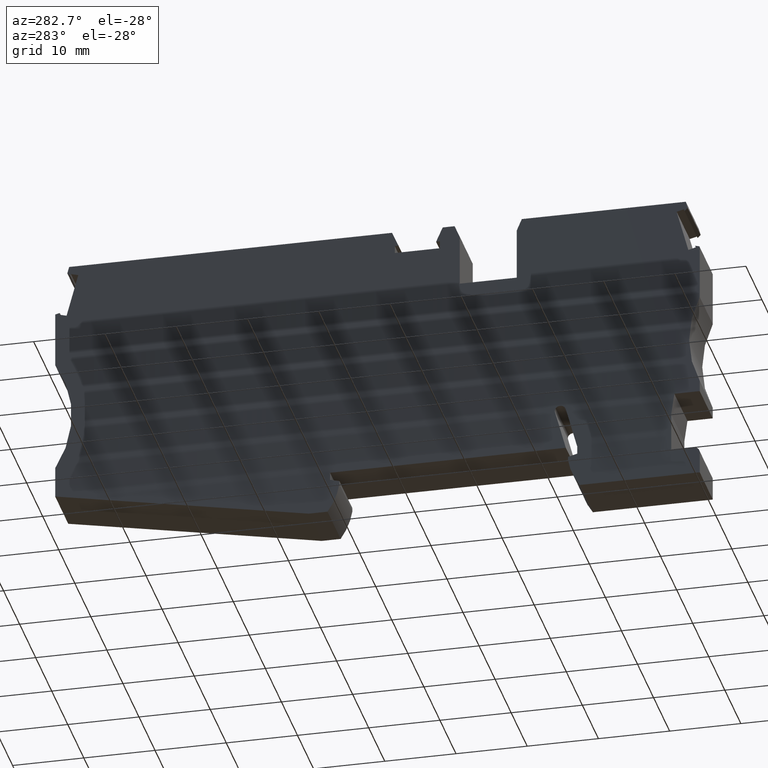
[diagram: clean part render]
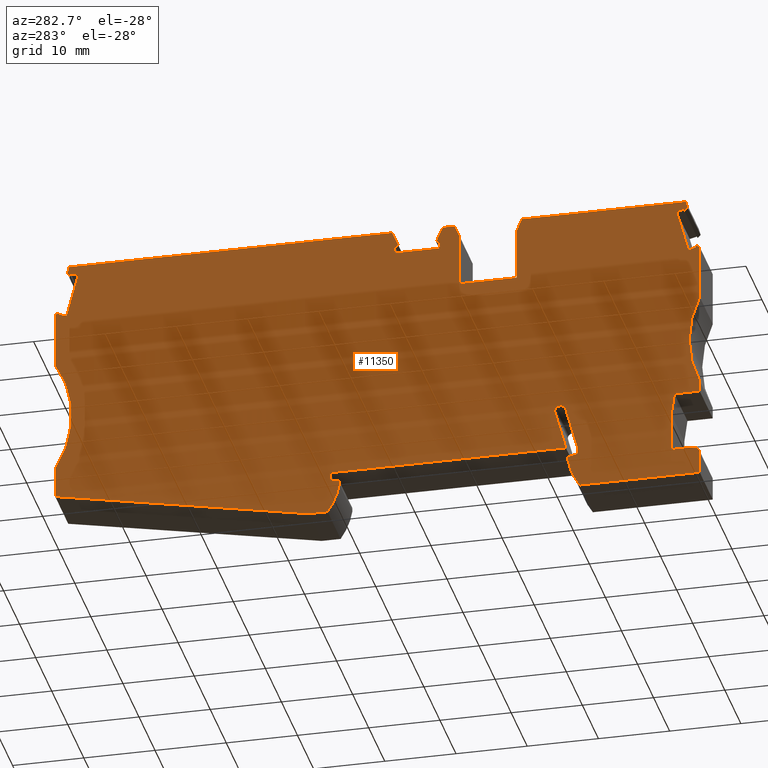
[diagram: same view with one face highlighted and labeled with its STEP entity id]
A machine part, auxiliary view. The second image highlights one B-rep face of the part: STEP entity #11350.
In plain terms, the highlighted planar face has unit normal (1, 0, 0).
Its self-contained STEP definition (entity closure, byte-faithful):
#6450=CARTESIAN_POINT('',(21.038441,-10.370222,45.52));
#6460=DIRECTION('',(0.,0.,1.));
#6470=DIRECTION('',(1.,0.,0.));
#6480=AXIS2_PLACEMENT_3D('',#6450,#6460,#6470);
#6490=PLANE('',#6480);
#6500=CARTESIAN_POINT('',(-46.2773644320327,-44.4000000000004,45.52));
#6510=DIRECTION('',(1.,-1.85407245112401E-14,0.));
#6520=VECTOR('',#6510,1.);
#6530=LINE('',#6500,#6520);
#6540=CARTESIAN_POINT('',(19.4911108748078,-44.4000000000016,45.52));
#6550=VERTEX_POINT('',#6540);
#6560=CARTESIAN_POINT('',(22.1321672216373,-44.4000000000017,45.52));
#6570=VERTEX_POINT('',#6560);
#6580=EDGE_CURVE('',#6550,#6570,#6530,.T.);
#6590=ORIENTED_EDGE('',*,*,#6580,.F.);
#6600=CARTESIAN_POINT('',(-47.9245331717135,-57.8151128412913,45.52));
#6610=DIRECTION('',(0.98215519189214,0.188072270787892,0.));
#6620=VECTOR('',#6610,1.);
#6630=LINE('',#6600,#6620);
#6640=CARTESIAN_POINT('',(57.7321672216756,-37.5829787234045,45.52));
#6650=VERTEX_POINT('',#6640);
#6660=EDGE_CURVE('',#6570,#6650,#6630,.T.);
#6670=ORIENTED_EDGE('',*,*,#6660,.F.);
#6680=CARTESIAN_POINT('',(57.7321672216756,-43.855159722427,45.52));
#6690=DIRECTION('',(0.,1.,0.));
#6700=VECTOR('',#6690,1.);
#6710=LINE('',#6680,#6700);
#6720=CARTESIAN_POINT('',(57.7321672216756,-33.2000000000001,45.52));
#6730=VERTEX_POINT('',#6720);
#6740=EDGE_CURVE('',#6650,#6730,#6710,.T.);
#6750=ORIENTED_EDGE('',*,*,#6740,.F.);
#6760=CARTESIAN_POINT('',(70.4207447621228,-25.2000000000012,45.52));
#6770=DIRECTION('',(0.,0.,1.));
#6780=DIRECTION('',(1.,0.,0.));
#6790=AXIS2_PLACEMENT_3D('',#6760,#6770,#6780);
#6800=CIRCLE('',#6790,14.9999999999975);
#6810=CARTESIAN_POINT('',(57.7321672216756,-17.2000000000023,45.52));
#6820=VERTEX_POINT('',#6810);
#6830=EDGE_CURVE('',#6820,#6730,#6800,.T.);
#6840=ORIENTED_EDGE('',*,*,#6830,.T.);
#6850=CARTESIAN_POINT('',(57.7321672216755,-43.855159722427,45.52));
#6860=DIRECTION('',(5.55111512312578E-17,1.,0.));
#6870=VECTOR('',#6860,1.);
#6880=LINE('',#6850,#6870);
#6890=CARTESIAN_POINT('',(57.7321672216757,-9.35007932792135,45.52));
#6900=VERTEX_POINT('',#6890);
#6910=EDGE_CURVE('',#6820,#6900,#6880,.T.);
#6920=ORIENTED_EDGE('',*,*,#6910,.F.);
#6930=CARTESIAN_POINT('',(-38.7979327141959,16.5150829944433,45.52));
#6940=DIRECTION('',(-0.965925826290939,0.25881904509554,0.));
#6950=VECTOR('',#6940,1.);
#6960=LINE('',#6930,#6950);
#6970=CARTESIAN_POINT('',(57.0932633654052,-9.17888555559751,45.52));
#6980=VERTEX_POINT('',#6970);
#6990=EDGE_CURVE('',#6900,#6980,#6960,.T.);
#7000=ORIENTED_EDGE('',*,*,#6990,.F.);
#7010=CARTESIAN_POINT('',(66.67909723662,-44.953704595741,45.52));
#7020=DIRECTION('',(0.258819045103503,-0.965925826288805,0.));
#7030=VECTOR('',#7020,1.);
#7040=LINE('',#7010,#7030);
#7050=CARTESIAN_POINT('',(57.1637417638807,-9.44191451954375,45.52));
#7060=VERTEX_POINT('',#7050);
#7070=EDGE_CURVE('',#6980,#7060,#7040,.T.);
#7080=ORIENTED_EDGE('',*,*,#7070,.F.);
#7090=CARTESIAN_POINT('',(-45.3580196612604,-36.912537700084,45.52));
#7100=DIRECTION('',(-0.965925826288933,-0.258819045103026,0.));
#7110=VECTOR('',#7100,1.);
#7120=LINE('',#7090,#7110);
#7130=CARTESIAN_POINT('',(56.1302011297505,-9.71885089780426,45.52));
#7140=VERTEX_POINT('',#7130);
#7150=EDGE_CURVE('',#7060,#7140,#7120,.T.);
#7160=ORIENTED_EDGE('',*,*,#7150,.F.);
#7170=CARTESIAN_POINT('',(65.5336670427523,-44.813063452342,45.52));
#7180=DIRECTION('',(-0.258819045102705,0.965925826289019,0.));
#7190=VECTOR('',#7180,1.);
#7200=LINE('',#7170,#7190);
#7210=CARTESIAN_POINT('',(54.4931706694759,-3.60937004652565,45.52));
#7220=VERTEX_POINT('',#7210);
#7230=EDGE_CURVE('',#7140,#7220,#7200,.T.);
#7240=ORIENTED_EDGE('',*,*,#7230,.F.);
#7250=CARTESIAN_POINT('',(-44.5266596313707,-30.1416536102915,45.52));
#7260=DIRECTION('',(0.9659258262891,0.258819045102404,0.));
#7270=VECTOR('',#7260,1.);
#7280=LINE('',#7250,#7270);
#7290=CARTESIAN_POINT('',(55.5267113036061,-3.33243366826583,45.52));
#7300=VERTEX_POINT('',#7290);
#7310=EDGE_CURVE('',#7220,#7300,#7280,.T.);
#7320=ORIENTED_EDGE('',*,*,#7310,.F.);
#7330=CARTESIAN_POINT('',(66.6790972365502,-44.9537045957324,45.52));
#7340=DIRECTION('',(0.258819045101928,-0.965925826289227,0.));
#7350=VECTOR('',#7340,1.);
#7360=LINE('',#7330,#7350);
#7370=CARTESIAN_POINT('',(55.5971897020822,-3.5954626322157,45.52));
#7380=VERTEX_POINT('',#7370);
#7390=EDGE_CURVE('',#7300,#7380,#7360,.T.);
#7400=ORIENTED_EDGE('',*,*,#7390,.F.);
#7410=CARTESIAN_POINT('',(19.9736549601527,-39.218997374049,45.52));
#7420=DIRECTION('',(0.707106781187503,0.707106781185593,0.));
#7430=VECTOR('',#7420,1.);
#7440=LINE('',#7410,#7430);
#7450=CARTESIAN_POINT('',(56.0299328899744,-3.16271944432467,45.52));
#7460=VERTEX_POINT('',#7450);
#7470=EDGE_CURVE('',#7380,#7460,#7440,.T.);
#7480=ORIENTED_EDGE('',*,*,#7470,.F.);
#7490=CARTESIAN_POINT('',(67.2464598559739,-45.0233679658311,45.52));
#7500=DIRECTION('',(-0.258819045102926,0.96592582628896,0.));
#7510=VECTOR('',#7500,1.);
#7520=LINE('',#7490,#7510);
#7530=CARTESIAN_POINT('',(55.7719729923255,-2.19999999998543,45.52));
#7540=VERTEX_POINT('',#7530);
#7550=EDGE_CURVE('',#7460,#7540,#7520,.T.);
#7560=ORIENTED_EDGE('',*,*,#7550,.F.);
#7570=CARTESIAN_POINT('',(-41.0958559619296,-2.19999999999667,45.52));
#7580=DIRECTION('',(-1.,-1.1550482792444E-13,0.));
#7590=VECTOR('',#7580,1.);
#7600=LINE('',#7570,#7590);
#7610=CARTESIAN_POINT('',(10.4418215966527,-2.19999999999068,45.52));
#7620=VERTEX_POINT('',#7610);
#7630=EDGE_CURVE('',#7540,#7620,#7600,.T.);
#7640=ORIENTED_EDGE('',*,*,#7630,.F.);
#7650=CARTESIAN_POINT('',(-5.11084090843868,-37.5907940006739,45.52));
#7660=DIRECTION('',(-0.402320578212711,-0.915498854366618,0.));
#7670=VECTOR('',#7660,1.);
#7680=LINE('',#7650,#7670);
#7690=CARTESIAN_POINT('',(9.51676875458966,-4.30499999998961,45.52));
#7700=VERTEX_POINT('',#7690);
#7710=EDGE_CURVE('',#7620,#7700,#7680,.T.);
#7720=ORIENTED_EDGE('',*,*,#7710,.F.);
#7730=CARTESIAN_POINT('',(-19.5576683774103,-4.30499999998969,45.52));
#7740=DIRECTION('',(1.,5.55111512312578E-17,0.));
#7750=VECTOR('',#7740,1.);
#7760=LINE('',#7730,#7750);
#7770=CARTESIAN_POINT('',(10.0446672216767,-4.3049999999896,45.52));
#7780=VERTEX_POINT('',#7770);
#7790=EDGE_CURVE('',#7700,#7780,#7760,.T.);
#7800=ORIENTED_EDGE('',*,*,#7790,.F.);
#7810=CARTESIAN_POINT('',(10.0446672216767,-37.5907940006739,45.52));
#7820=DIRECTION('',(5.55111512312578E-17,-1.,0.));
#7830=VECTOR('',#7820,1.);
#7840=LINE('',#7810,#7830);
#7850=CARTESIAN_POINT('',(10.0446672216767,-5.37499999998962,45.52));
#7860=VERTEX_POINT('',#7850);
#7870=EDGE_CURVE('',#7780,#7860,#7840,.T.);
#7880=ORIENTED_EDGE('',*,*,#7870,.F.);
#7890=CARTESIAN_POINT('',(-19.5576683774103,-5.37499999998796,45.52));
#7900=DIRECTION('',(-1.,5.79258863098175E-14,0.));
#7910=VECTOR('',#7900,1.);
#7920=LINE('',#7890,#7910);
#7930=CARTESIAN_POINT('',(3.7196672216766,-5.37499999998928,45.52));
#7940=VERTEX_POINT('',#7930);
#7950=EDGE_CURVE('',#7860,#7940,#7920,.T.);
#7960=ORIENTED_EDGE('',*,*,#7950,.F.);
#7970=CARTESIAN_POINT('',(3.71966722167662,-37.5907940006739,45.52));
#7980=DIRECTION('',(-5.55111512312578E-17,1.,0.));
#7990=VECTOR('',#7980,1.);
#8000=LINE('',#7970,#7990);
#8010=CARTESIAN_POINT('',(3.71966722167661,-4.30499999998962,45.52));
#8020=VERTEX_POINT('',#8010);
#8030=EDGE_CURVE('',#7940,#8020,#8000,.T.);
#8040=ORIENTED_EDGE('',*,*,#8030,.F.);
#8050=CARTESIAN_POINT('',(-19.5576683774103,-4.30499999998969,45.52));
#8060=DIRECTION('',(1.,5.55111512312578E-17,0.));
#8070=VECTOR('',#8060,1.);
#8080=LINE('',#8050,#8070);
#8090=CARTESIAN_POINT('',(4.24756568876222,-4.30499999998969,45.52));
#8100=VERTEX_POINT('',#8090);
#8110=EDGE_CURVE('',#8020,#8100,#8080,.T.);
#8120=ORIENTED_EDGE('',*,*,#8110,.F.);
#8130=CARTESIAN_POINT('',(18.8751753517561,-37.5907940006739,45.52));
#8140=DIRECTION('',(-0.402320578211921,0.915498854366965,0.));
#8150=VECTOR('',#8140,1.);
#8160=LINE('',#8130,#8150);
#8170=CARTESIAN_POINT('',(3.32251284670154,-2.19999999999153,45.52));
#8180=VERTEX_POINT('',#8170);
#8190=EDGE_CURVE('',#8100,#8180,#8160,.T.);
#8200=ORIENTED_EDGE('',*,*,#8190,.F.);
#8210=CARTESIAN_POINT('',(-19.5576683774103,-2.19999999999418,45.52));
#8220=DIRECTION('',(-1.,-1.1550482792444E-13,0.));
#8230=VECTOR('',#8220,1.);
#8240=LINE('',#8210,#8230);
#8250=CARTESIAN_POINT('',(1.65066694098097,-2.19999999999167,45.52));
#8260=VERTEX_POINT('',#8250);
#8270=EDGE_CURVE('',#8180,#8260,#8240,.T.);
#8280=ORIENTED_EDGE('',*,*,#8270,.F.);
#8290=CARTESIAN_POINT('',(-13.3071422093151,-37.5907940006739,45.52));
#8300=DIRECTION('',(0.389303997098168,0.92110933001647,0.));
#8310=VECTOR('',#8300,1.);
#8320=LINE('',#8290,#8310);
#8330=CARTESIAN_POINT('',(0.932167221675236,-3.89999999999126,45.52));
#8340=VERTEX_POINT('',#8330);
#8350=EDGE_CURVE('',#8340,#8260,#8320,.T.);
#8360=ORIENTED_EDGE('',*,*,#8350,.T.);
#8370=CARTESIAN_POINT('',(0.932167221675215,-37.5907940006739,45.52));
#8380=DIRECTION('',(0.,1.,0.));
#8390=VECTOR('',#8380,1.);
#8400=LINE('',#8370,#8390);
#8410=CARTESIAN_POINT('',(0.932167221675208,-11.1999999999897,45.52));
#8420=VERTEX_POINT('',#8410);
#8430=EDGE_CURVE('',#8420,#8340,#8400,.T.);
#8440=ORIENTED_EDGE('',*,*,#8430,.T.);
#8450=CARTESIAN_POINT('',(-19.5576683774103,-11.1999999999897,45.52));
#8460=DIRECTION('',(1.,4.44089209850063E-16,0.));
#8470=VECTOR('',#8460,1.);
#8480=LINE('',#8450,#8470);
#8490=CARTESIAN_POINT('',(-7.06783277832459,-11.1999999999897,45.52));
#8500=VERTEX_POINT('',#8490);
#8510=EDGE_CURVE('',#8500,#8420,#8480,.T.);
#8520=ORIENTED_EDGE('',*,*,#8510,.T.);
#8530=CARTESIAN_POINT('',(-7.0678327783246,-37.5907940006739,45.52));
#8540=DIRECTION('',(0.,-1.,0.));
#8550=VECTOR('',#8540,1.);
#8560=LINE('',#8530,#8550);
#8570=CARTESIAN_POINT('',(-7.06783277832459,-3.89999999999147,45.52));
#8580=VERTEX_POINT('',#8570);
#8590=EDGE_CURVE('',#8580,#8500,#8560,.T.);
#8600=ORIENTED_EDGE('',*,*,#8590,.T.);
#8610=CARTESIAN_POINT('',(7.17147665214931,-37.5907940006739,45.52));
#8620=DIRECTION('',(0.38930399708619,-0.921109330021533,0.));
#8630=VECTOR('',#8620,1.);
#8640=LINE('',#8610,#8630);
#8650=CARTESIAN_POINT('',(-7.78633249760639,-2.19999999998685,45.52));
#8660=VERTEX_POINT('',#8650);
#8670=EDGE_CURVE('',#8660,#8580,#8640,.T.);
#8680=ORIENTED_EDGE('',*,*,#8670,.T.);
#8690=CARTESIAN_POINT('',(-19.5576683774103,-2.19999999998686,45.52));
#8700=DIRECTION('',(1.,0.,0.));
#8710=VECTOR('',#8700,1.);
#8720=LINE('',#8690,#8710);
#8730=CARTESIAN_POINT('',(-30.8076385489786,-2.19999999998685,45.52));
#8740=VERTEX_POINT('',#8730);
#8750=EDGE_CURVE('',#8740,#8660,#8720,.T.);
#8760=ORIENTED_EDGE('',*,*,#8750,.T.);
#8770=CARTESIAN_POINT('',(-40.2905732209753,-37.5907940006739,45.52));
#8780=DIRECTION('',(-0.258819045102936,-0.965925826288957,0.));
#8790=VECTOR('',#8780,1.);
#8800=LINE('',#8770,#8790);
#8810=CARTESIAN_POINT('',(-31.0655984466237,-3.16271944431209,45.52));
#8820=VERTEX_POINT('',#8810);
#8830=EDGE_CURVE('',#8740,#8820,#8800,.T.);
#8840=ORIENTED_EDGE('',*,*,#8830,.F.);
#8850=CARTESIAN_POINT('',(-19.5576683774103,-14.6706495134947,45.52));
#8860=DIRECTION('',(0.707106781187495,-0.7071067811856,0.));
#8870=VECTOR('',#8860,1.);
#8880=LINE('',#8850,#8870);
#8890=CARTESIAN_POINT('',(-30.6328552587316,-3.59546263220306,45.52));
#8900=VERTEX_POINT('',#8890);
#8910=EDGE_CURVE('',#8820,#8900,#8880,.T.);
#8920=ORIENTED_EDGE('',*,*,#8910,.F.);
#8930=CARTESIAN_POINT('',(-39.7418768453194,-37.5907940006739,45.52));
#8940=DIRECTION('',(0.258819045101928,0.965925826289227,0.));
#8950=VECTOR('',#8940,1.);
#8960=LINE('',#8930,#8950);
#8970=CARTESIAN_POINT('',(-30.5623768602555,-3.3324336682535,45.52));
#8980=VERTEX_POINT('',#8970);
#8990=EDGE_CURVE('',#8900,#8980,#8960,.T.);
#9000=ORIENTED_EDGE('',*,*,#8990,.F.);
#9010=CARTESIAN_POINT('',(-19.5576683774103,-6.28113641917038,45.52));
#9020=DIRECTION('',(0.9659258262891,-0.258819045102404,0.));
#9030=VECTOR('',#9020,1.);
#9040=LINE('',#9010,#9030);
#9050=CARTESIAN_POINT('',(-29.528836226126,-3.60937004651312,45.52));
#9060=VERTEX_POINT('',#9050);
#9070=EDGE_CURVE('',#8980,#9060,#9040,.T.);
#9080=ORIENTED_EDGE('',*,*,#9070,.F.);
#9090=CARTESIAN_POINT('',(-38.6341313323103,-37.5907940006739,45.52));
#9100=DIRECTION('',(-0.258819045102715,-0.965925826289016,0.));
#9110=VECTOR('',#9100,1.);
#9120=LINE('',#9090,#9110);
#9130=CARTESIAN_POINT('',(-31.1658666864007,-9.71885089779142,45.52));
#9140=VERTEX_POINT('',#9130);
#9150=EDGE_CURVE('',#9060,#9140,#9120,.T.);
#9160=ORIENTED_EDGE('',*,*,#9150,.F.);
#9170=CARTESIAN_POINT('',(-19.5576683774103,-12.8292582602685,45.52));
#9180=DIRECTION('',(-0.96592582628901,0.25881904510274,0.));
#9190=VECTOR('',#9180,1.);
#9200=LINE('',#9170,#9190);
#9210=CARTESIAN_POINT('',(-32.1994073205291,-9.4419145195317,45.52));
#9220=VERTEX_POINT('',#9210);
#9230=EDGE_CURVE('',#9140,#9220,#9200,.T.);
#9240=ORIENTED_EDGE('',*,*,#9230,.F.);
#9250=CARTESIAN_POINT('',(-39.7418768453639,-37.5907940006739,45.52));
#9260=DIRECTION('',(0.258819045103216,0.965925826288882,0.));
#9270=VECTOR('',#9260,1.);
#9280=LINE('',#9250,#9270);
#9290=CARTESIAN_POINT('',(-32.1289289220532,-9.17888555558442,45.52));
#9300=VERTEX_POINT('',#9290);
#9310=EDGE_CURVE('',#9220,#9300,#9280,.T.);
#9320=ORIENTED_EDGE('',*,*,#9310,.F.);
#9330=CARTESIAN_POINT('',(-19.5576683774103,-5.81042644490362,45.52));
#9340=DIRECTION('',(-0.965925826290942,-0.25881904509553,0.));
#9350=VECTOR('',#9340,1.);
#9360=LINE('',#9330,#9350);
#9370=CARTESIAN_POINT('',(-32.7200671100297,-9.33728055566333,45.52));
#9380=VERTEX_POINT('',#9370);
#9390=EDGE_CURVE('',#9300,#9380,#9360,.T.);
#9400=ORIENTED_EDGE('',*,*,#9390,.F.);
#9410=CARTESIAN_POINT('',(-32.7678327783251,-9.51554445659872,45.52));
#9420=VERTEX_POINT('',#9410);
#9430=EDGE_CURVE('',#9380,#9420,#8800,.T.);
#9440=ORIENTED_EDGE('',*,*,#9430,.F.);
#9450=CARTESIAN_POINT('',(-32.7678327783251,-37.5907940006739,45.52));
#9460=DIRECTION('',(-2.05391259555654E-15,1.,0.));
#9470=VECTOR('',#9460,1.);
#9480=LINE('',#9450,#9470);
#9490=CARTESIAN_POINT('',(-32.7678327783251,-17.199999999988,45.52));
#9500=VERTEX_POINT('',#9490);
#9510=EDGE_CURVE('',#9500,#9420,#9480,.T.);
#9520=ORIENTED_EDGE('',*,*,#9510,.T.);
#9530=CARTESIAN_POINT('',(-46.2863386129202,-23.6999999999894,45.52));
#9540=DIRECTION('',(0.,0.,1.));
#9550=DIRECTION('',(1.,0.,0.));
#9560=AXIS2_PLACEMENT_3D('',#9530,#9540,#9550);
#9570=CIRCLE('',#9560,15.);
#9580=CARTESIAN_POINT('',(-32.7678327783251,-30.1999999999908,45.52));
#9590=VERTEX_POINT('',#9580);
#9600=EDGE_CURVE('',#9590,#9500,#9570,.T.);
#9610=ORIENTED_EDGE('',*,*,#9600,.T.);
#9620=CARTESIAN_POINT('',(-32.7678327783251,-37.5907940006739,45.52));
#9630=DIRECTION('',(0.,1.,0.));
#9640=VECTOR('',#9630,1.);
#9650=LINE('',#9620,#9640);
#9660=CARTESIAN_POINT('',(-32.7678327783251,-31.8000000015353,45.52));
#9670=VERTEX_POINT('',#9660);
#9680=EDGE_CURVE('',#9670,#9590,#9650,.T.);
#9690=ORIENTED_EDGE('',*,*,#9680,.T.);
#9700=CARTESIAN_POINT('',(-19.5576683774103,-31.8000000015353,45.52));
#9710=DIRECTION('',(-1.,0.,0.));
#9720=VECTOR('',#9710,1.);
#9730=LINE('',#9700,#9720);
#9740=CARTESIAN_POINT('',(-29.2099951151613,-31.8000000015353,45.52));
#9750=VERTEX_POINT('',#9740);
#9760=EDGE_CURVE('',#9750,#9670,#9730,.T.);
#9770=ORIENTED_EDGE('',*,*,#9760,.T.);
#9780=CARTESIAN_POINT('',(-28.3961520935245,-37.5907940006739,45.52));
#9790=DIRECTION('',(-0.13917310086084,0.990268068755516,0.));
#9800=VECTOR('',#9790,1.);
#9810=LINE('',#9780,#9800);
#9820=CARTESIAN_POINT('',(-28.7678327783243,-34.9461485077317,45.52));
#9830=VERTEX_POINT('',#9820);
#9840=EDGE_CURVE('',#9830,#9750,#9810,.T.);
#9850=ORIENTED_EDGE('',*,*,#9840,.T.);
#9860=CARTESIAN_POINT('',(-28.7678327783243,-37.5907940006739,45.52));
#9870=DIRECTION('',(2.4980018054066E-15,1.,0.));
#9880=VECTOR('',#9870,1.);
#9890=LINE('',#9860,#9880);
#9900=CARTESIAN_POINT('',(-28.7678327783243,-40.3999999999991,45.52));
#9910=VERTEX_POINT('',#9900);
#9920=EDGE_CURVE('',#9910,#9830,#9890,.T.);
#9930=ORIENTED_EDGE('',*,*,#9920,.T.);
#9940=CARTESIAN_POINT('',(-19.5576683774103,-40.3999999999991,45.52));
#9950=DIRECTION('',(1.,-5.55111512312578E-17,0.));
#9960=VECTOR('',#9950,1.);
#9970=LINE('',#9940,#9960);
#9980=CARTESIAN_POINT('',(-31.8678327783246,-40.3999999999953,45.52));
#9990=VERTEX_POINT('',#9980);
#10000=EDGE_CURVE('',#9990,#9910,#9970,.T.);
#10010=ORIENTED_EDGE('',*,*,#10000,.T.);
#10020=CARTESIAN_POINT('',(-31.8678327783246,-41.2999999999954,45.52));
#10030=DIRECTION('',(0.,0.,1.));
#10040=DIRECTION('',(1.,-5.55111512312578E-17,0.));
#10050=AXIS2_PLACEMENT_3D('',#10020,#10030,#10040);
#10060=CIRCLE('',#10050,0.900000000000148);
#10070=CARTESIAN_POINT('',(-32.7678327783247,-41.2999999999954,45.52));
#10080=VERTEX_POINT('',#10070);
#10090=EDGE_CURVE('',#9990,#10080,#10060,.T.);
#10100=ORIENTED_EDGE('',*,*,#10090,.F.);
#10110=CARTESIAN_POINT('',(-32.7678327783248,-37.5907940006739,45.52));
#10120=DIRECTION('',(-1.34892097491957E-14,1.,0.));
#10130=VECTOR('',#10120,1.);
#10140=LINE('',#10110,#10130);
#10150=CARTESIAN_POINT('',(-32.7678327783247,-44.4000000000013,45.52));
#10160=VERTEX_POINT('',#10150);
#10170=EDGE_CURVE('',#10160,#10080,#10140,.T.);
#10180=ORIENTED_EDGE('',*,*,#10170,.T.);
#10190=CARTESIAN_POINT('',(-46.2773644320328,-44.4000000000013,45.52));
#10200=DIRECTION('',(-1.,-3.94129173741931E-15,0.));
#10210=VECTOR('',#10200,1.);
#10220=LINE('',#10190,#10210);
#10230=CARTESIAN_POINT('',(-15.926776431457,-44.4000000000012,45.52));
#10240=VERTEX_POINT('',#10230);
#10250=EDGE_CURVE('',#10240,#10160,#10220,.T.);
#10260=ORIENTED_EDGE('',*,*,#10250,.T.);
#10270=CARTESIAN_POINT('',(-23.661805457701,-38.884628211704,45.52));
#10280=DIRECTION('',(0.,0.,1.));
#10290=DIRECTION('',(1.,0.,0.));
#10300=AXIS2_PLACEMENT_3D('',#10270,#10280,#10290);
#10310=CIRCLE('',#10300,9.499999999999);
#10320=CARTESIAN_POINT('',(-14.2678327783249,-40.3000000000043,45.52));
#10330=VERTEX_POINT('',#10320);
#10340=EDGE_CURVE('',#10240,#10330,#10310,.T.);
#10350=ORIENTED_EDGE('',*,*,#10340,.F.);
#10360=CARTESIAN_POINT('',(-14.2678327783249,-3.19744231092045E-14,45.52
));
#10370=DIRECTION('',(0.,1.,0.));
#10380=VECTOR('',#10370,1.);
#10390=LINE('',#10360,#10380);
#10400=CARTESIAN_POINT('',(-14.2678327783249,-39.8483339501619,45.52));
#10410=VERTEX_POINT('',#10400);
#10420=EDGE_CURVE('',#10330,#10410,#10390,.T.);
#10430=ORIENTED_EDGE('',*,*,#10420,.F.);
#10440=CARTESIAN_POINT('',(-7.105427357601E-15,-43.671388220858,45.52));
#10450=DIRECTION('',(-0.96592582628904,0.258819045102626,0.));
#10460=VECTOR('',#10450,1.);
#10470=LINE('',#10440,#10460);
#10480=CARTESIAN_POINT('',(-15.5678327783278,-39.5000000000005,45.52));
#10490=VERTEX_POINT('',#10480);
#10500=EDGE_CURVE('',#10410,#10490,#10470,.T.);
#10510=ORIENTED_EDGE('',*,*,#10500,.F.);
#10520=CARTESIAN_POINT('',(-15.5678327783278,-3.5527136788005E-14,45.52)
);
#10530=DIRECTION('',(0.,1.,0.));
#10540=VECTOR('',#10530,1.);
#10550=LINE('',#10520,#10540);
#10560=CARTESIAN_POINT('',(-15.5678327783275,-38.3999999999946,45.52));
#10570=VERTEX_POINT('',#10560);
#10580=EDGE_CURVE('',#10490,#10570,#10550,.T.);
#10590=ORIENTED_EDGE('',*,*,#10580,.F.);
#10600=CARTESIAN_POINT('',(-14.6482218863155,-34.967965427821,45.52));
#10610=DIRECTION('',(0.258819045103168,0.965925826288895,0.));
#10620=VECTOR('',#10610,1.);
#10630=LINE('',#10600,#10620);
#10640=CARTESIAN_POINT('',(-13.9582471789276,-32.3929447639188,45.52));
#10650=VERTEX_POINT('',#10640);
#10660=EDGE_CURVE('',#10570,#10650,#10630,.T.);
#10670=ORIENTED_EDGE('',*,*,#10660,.F.);
#10680=CARTESIAN_POINT('',(-13.1855065178957,-32.6000000000016,45.52));
#10690=DIRECTION('',(0.,0.,1.));
#10700=DIRECTION('',(1.,0.,0.));
#10710=AXIS2_PLACEMENT_3D('',#10680,#10690,#10700);
#10720=CIRCLE('',#10710,0.799999999999994);
#10730=CARTESIAN_POINT('',(-12.9558416625105,-31.8336749683075,45.52));
#10740=VERTEX_POINT('',#10730);
#10750=EDGE_CURVE('',#10740,#10650,#10720,.T.);
#10760=ORIENTED_EDGE('',*,*,#10750,.T.);
#10770=CARTESIAN_POINT('',(-13.1156930297918,-32.5151788497188,45.52));
#10780=DIRECTION('',(0.,0.,1.));
#10790=DIRECTION('',(1.,0.,0.));
#10800=AXIS2_PLACEMENT_3D('',#10770,#10780,#10790);
#10810=CIRCLE('',#10800,0.700000000000186);
#10820=CARTESIAN_POINT('',(-12.439544951387,-32.6963521812911,45.52));
#10830=VERTEX_POINT('',#10820);
#10840=EDGE_CURVE('',#10830,#10740,#10810,.T.);
#10850=ORIENTED_EDGE('',*,*,#10840,.T.);
#10860=CARTESIAN_POINT('',(-13.0991852294034,-35.1581632135624,45.52));
#10870=DIRECTION('',(-0.258819045102994,-0.965925826288941,0.));
#10880=VECTOR('',#10870,1.);
#10890=LINE('',#10860,#10880);
#10900=CARTESIAN_POINT('',(-13.967832778325,-38.4000000000016,45.52));
#10910=VERTEX_POINT('',#10900);
#10920=EDGE_CURVE('',#10830,#10910,#10890,.T.);
#10930=ORIENTED_EDGE('',*,*,#10920,.F.);
#10940=CARTESIAN_POINT('',(-45.5406570666154,-38.4000000000016,45.52));
#10950=DIRECTION('',(1.,0.,0.));
#10960=VECTOR('',#10950,1.);
#10970=LINE('',#10940,#10960);
#10980=CARTESIAN_POINT('',(19.1321672216755,-38.4000000000016,45.52));
#10990=VERTEX_POINT('',#10980);
#11000=EDGE_CURVE('',#10910,#10990,#10970,.T.);
#11010=ORIENTED_EDGE('',*,*,#11000,.F.);
#11020=CARTESIAN_POINT('',(19.1321672216755,-3.19744231092045E-14,45.52)
);
#11030=DIRECTION('',(0.,-1.,0.));
#11040=VECTOR('',#11030,1.);
#11050=LINE('',#11020,#11040);
#11060=CARTESIAN_POINT('',(19.1321672216755,-39.5000000000015,45.52));
#11070=VERTEX_POINT('',#11060);
#11080=EDGE_CURVE('',#10990,#11070,#11050,.T.);
#11090=ORIENTED_EDGE('',*,*,#11080,.F.);
#11100=CARTESIAN_POINT('',(0.,-44.6264487565053,45.52));
#11110=DIRECTION('',(-0.965925826289086,-0.258819045102457,0.));
#11120=VECTOR('',#11110,1.);
#11130=LINE('',#11100,#11120);
#11140=CARTESIAN_POINT('',(17.8321672216754,-39.8483339501619,45.52));
#11150=VERTEX_POINT('',#11140);
#11160=EDGE_CURVE('',#11070,#11150,#11130,.T.);
#11170=ORIENTED_EDGE('',*,*,#11160,.F.);
#11180=CARTESIAN_POINT('',(17.8321672217029,-2.8421709430404E-14,45.52))
;
#11190=DIRECTION('',(-6.9022565440946E-13,-1.,0.));
#11200=VECTOR('',#11190,1.);
#11210=LINE('',#11180,#11200);
#11220=CARTESIAN_POINT('',(17.8321672216751,-40.3000000000021,45.52));
#11230=VERTEX_POINT('',#11220);
#11240=EDGE_CURVE('',#11150,#11230,#11210,.T.);
#11250=ORIENTED_EDGE('',*,*,#11240,.F.);
#11260=CARTESIAN_POINT('',(27.2261399010515,-38.884628211704,45.52));
#11270=DIRECTION('',(0.,0.,-1.));
#11280=DIRECTION('',(-1.,0.,0.));
#11290=AXIS2_PLACEMENT_3D('',#11260,#11270,#11280);
#11300=CIRCLE('',#11290,9.499999999999);
#11310=EDGE_CURVE('',#6550,#11230,#11300,.T.);
#11320=ORIENTED_EDGE('',*,*,#11310,.T.);
#11330=EDGE_LOOP('',(#11320,#11250,#11170,#11090,#11010,#10930,#10850,
#10760,#10670,#10590,#10510,#10430,#10350,#10260,#10180,#10100,#10010,
#9930,#9850,#9770,#9690,#9610,#9520,#9440,#9400,#9320,#9240,#9160,#9080,
#9000,#8920,#8840,#8760,#8680,#8600,#8520,#8440,#8360,#8280,#8200,#8120,
#8040,#7960,#7880,#7800,#7720,#7640,#7560,#7480,#7400,#7320,#7240,#7160,
#7080,#7000,#6920,#6840,#6750,#6670,#6590));
#11340=FACE_OUTER_BOUND('',#11330,.T.);
#11350=ADVANCED_FACE('',(#11340),#6490,.F.);